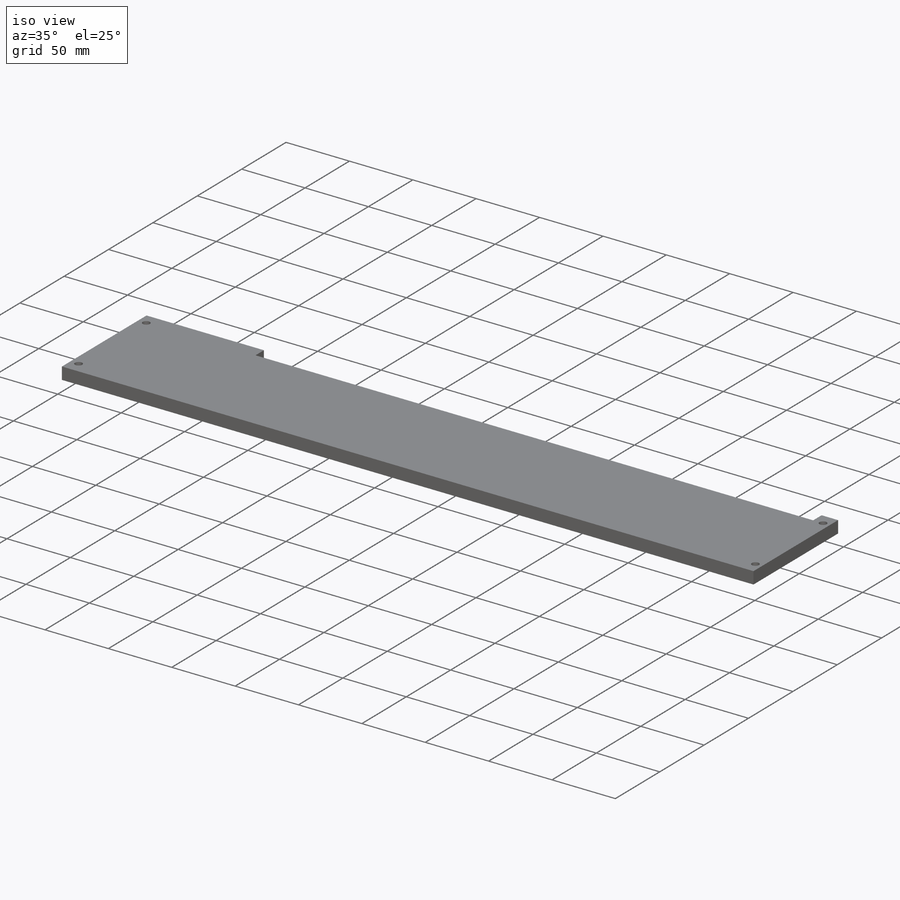
[diagram: iso view]
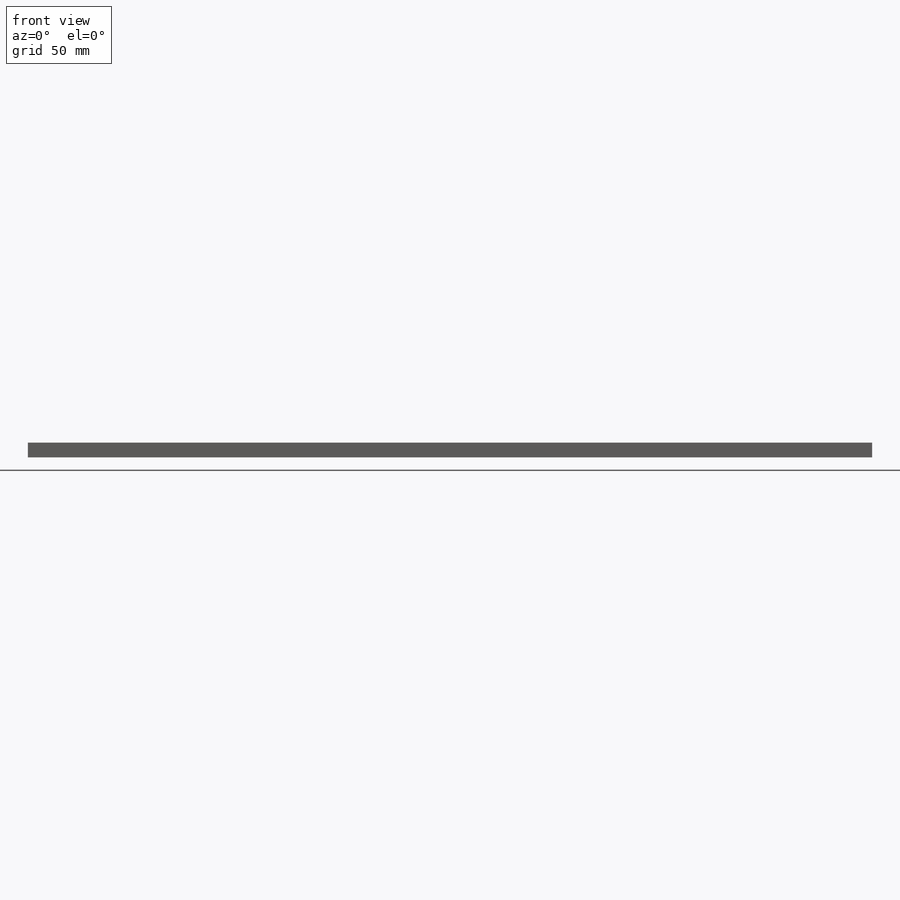
[diagram: front view]
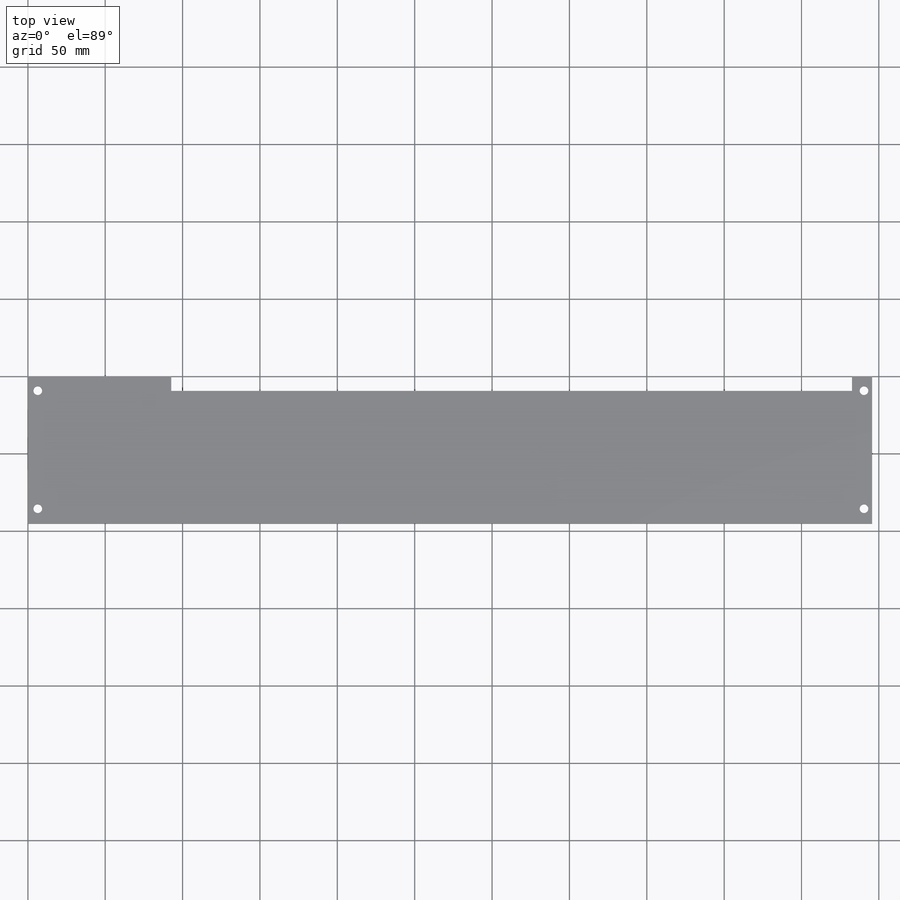
[diagram: top view]
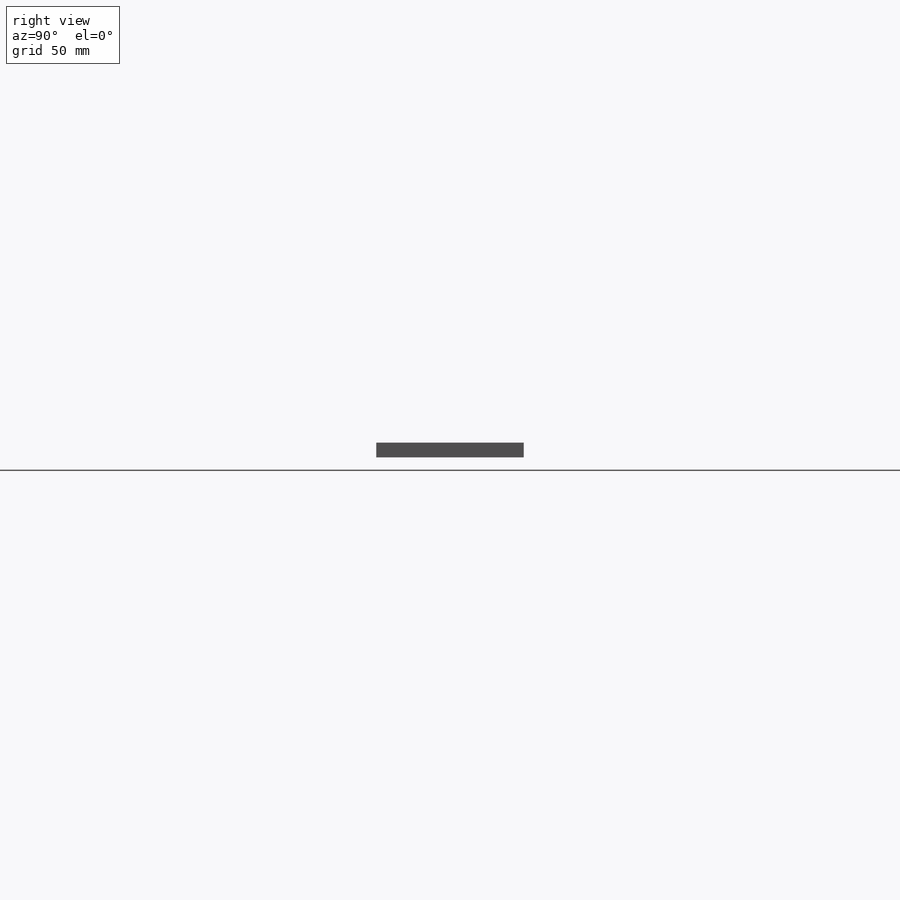
[diagram: right view]
SOLIDWORKS PART (.sldprt)
format: sldprt  version: not decoded by parser v0  size: 204,800 bytes
history: native  units: mm
features: sketch x3, cut_extrude x2, material x1, extrude x1 (+11 scaffold rows collapsed)
feature tree (18):
  scaffold x11  (default folders/planes/origin — collapsed)
  material  "1060 Alloy"
  sketch  "Sketch1"  dims[D1=545.64mm D2=95.3mm D3=13.0mm D4=440.0mm D5=9.5mm]
  extrude  "Boss-Extrude1"  Depth=9.55mm
  sketch  "Sketch2"  dims[c1.D1=5.59mm c1.D2=9.22mm c1.D7=6.89mm c1.D8=5.13mm c1.D12=7.96mm c1.D13=4.96mm c1.D14=2.77mm c1.D3=17.64mm c1.D4=1.81mm c1.D5=76.3mm c1.D6=15.69mm c1.D9=28.16mm c1.D10=57.21mm c1.D11=1.96mm c1.D15=6.5mm c1.D16=17.66mm c1.D17=6.15mm c1.D18=42.0mm c1.D19=44.44mm c1.D20=15.04mm c2.D3=9.38mm c2.D4=6.4mm c2.D6=534.0mm]
  cut_extrude  "Cut-Extrude1"  [1 undecoded]
  sketch  "Sketch5"  dims[D1=9.22mm D2=9.22mm D3=9.22mm D4=9.22mm]
  cut_extrude  "Cut-Extrude3"  Depth=5.2mm
decode coverage: 5 of 6 modeling features carry decoded parameters
note: 1 parameter value undecoded
note: suppression state not decoded; provenance and decode notes live in map.json
